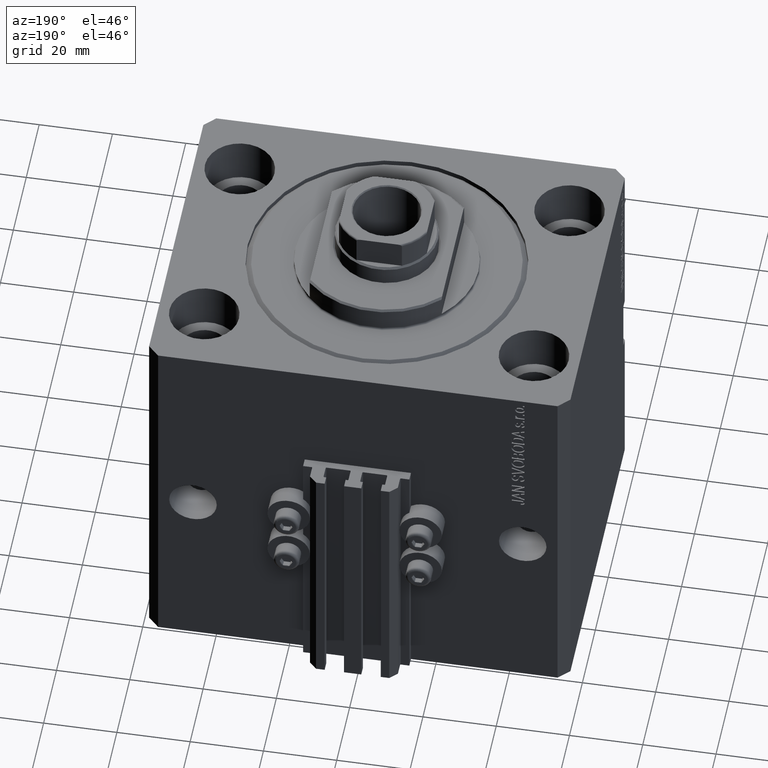
[diagram: clean part render]
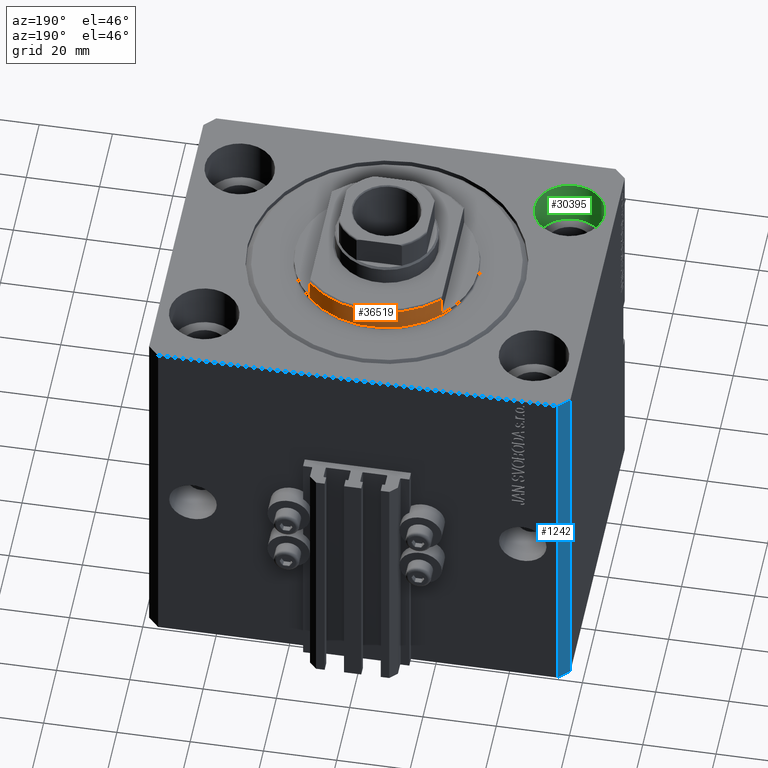
[diagram: same view with three faces highlighted in distinct colors, each labeled with its STEP entity id]
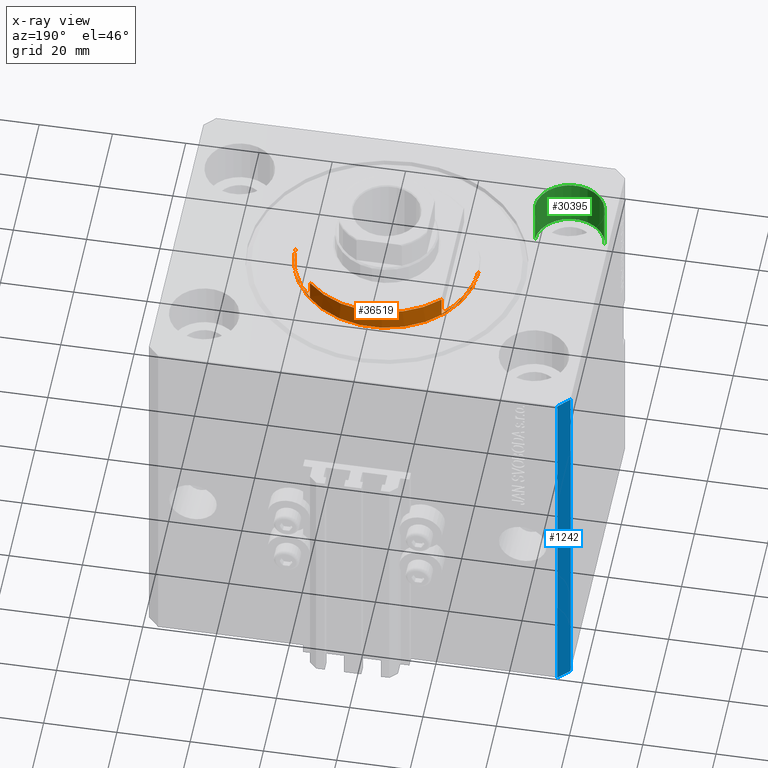
[diagram: x-ray of the same camera — body ghosted, the three highlighted faces saturated]
A machine part, auxiliary view with three faces highlighted in distinct colors.
The next image is the same camera in x-ray (body ghosted, the three faces saturated) — at least one of them is partly hidden behind the body in this view.
Their STEP definitions:

[orange] entity #36519 — the highlighted cylindrical surface (partial cylindrical patch) has radius 25 mm, axis along (0, 0, -1).
#260 = VECTOR ( 'NONE', #36054, 1000.000000000000000 ) ;
#305 = CARTESIAN_POINT ( 'NONE',  ( 0.000000000000000000, 0.000000000000000000, -6.499999999999958256 ) ) ;
#2420 = CIRCLE ( 'NONE', #33049, 25.00000000000000000 ) ;
#3402 = VERTEX_POINT ( 'NONE', #48473 ) ;
#3688 = CARTESIAN_POINT ( 'NONE',  ( -25.00000000000000000, 3.061616997868383043E-15, -7.000000000000000000 ) ) ;
#4120 = AXIS2_PLACEMENT_3D ( 'NONE', #43318, #39877, #9611 ) ;
#4731 = ORIENTED_EDGE ( 'NONE', *, *, #18673, .T. ) ;
#4768 = VECTOR ( 'NONE', #32281, 1000.000000000000000 ) ;
#5048 = DIRECTION ( 'NONE',  ( 1.000000000000000000, 0.000000000000000000, 0.000000000000000000 ) ) ;
#7328 = ORIENTED_EDGE ( 'NONE', *, *, #43600, .T. ) ;
#7659 = CARTESIAN_POINT ( 'NONE',  ( -25.00000000000000000, 3.061616997868383043E-15, -1.000000000000000000 ) ) ;
#7701 = VERTEX_POINT ( 'NONE', #31613 ) ;
#7801 = VERTEX_POINT ( 'NONE', #17338 ) ;
#8742 = CARTESIAN_POINT ( 'NONE',  ( 0.000000000000000000, 0.000000000000000000, -7.000000000000000000 ) ) ;
#9611 = DIRECTION ( 'NONE',  ( -1.000000000000000000, 0.000000000000000000, 0.000000000000000000 ) ) ;
#10308 = VECTOR ( 'NONE', #19401, 1000.000000000000000 ) ;
#10647 = EDGE_CURVE ( 'NONE', #34896, #3402, #41343, .T. ) ;
#11898 = ORIENTED_EDGE ( 'NONE', *, *, #34471, .F. ) ;
#12239 = LINE ( 'NONE', #46457, #10308 ) ;
#12630 = ORIENTED_EDGE ( 'NONE', *, *, #22662, .T. ) ;
#13529 = CARTESIAN_POINT ( 'NONE',  ( -18.00000000000000000, 17.34935157289747920, -1.000000000000000000 ) ) ;
#15589 = CARTESIAN_POINT ( 'NONE',  ( 18.00000000000000000, 17.34935157289747920, -1.000000000000000000 ) ) ;
#17184 = CARTESIAN_POINT ( 'NONE',  ( 0.000000000000000000, 0.000000000000000000, -0.4999999999999995559 ) ) ;
#17273 = CARTESIAN_POINT ( 'NONE',  ( 25.00000000000000000, 0.000000000000000000, -7.000000000000000000 ) ) ;
#17338 = CARTESIAN_POINT ( 'NONE',  ( 25.00000000000000000, 0.000000000000000000, -1.000000000000000000 ) ) ;
#18279 = DIRECTION ( 'NONE',  ( -1.000000000000000000, 0.000000000000000000, 0.000000000000000000 ) ) ;
#18673 = EDGE_CURVE ( 'NONE', #3402, #22641, #24182, .T. ) ;
#18759 = DIRECTION ( 'NONE',  ( 0.000000000000000000, 0.000000000000000000, 1.000000000000000000 ) ) ;
#19401 = DIRECTION ( 'NONE',  ( -0.000000000000000000, -0.000000000000000000, 1.000000000000000000 ) ) ;
#21291 = CARTESIAN_POINT ( 'NONE',  ( 18.00000000000000000, 17.34935157289748986, -6.499999999999965361 ) ) ;
#22641 = VERTEX_POINT ( 'NONE', #30066 ) ;
#22662 = EDGE_CURVE ( 'NONE', #42837, #7701, #22751, .T. ) ;
#22751 = CIRCLE ( 'NONE', #30600, 25.00000000000000000 ) ;
#22899 = DIRECTION ( 'NONE',  ( -0.000000000000000000, -0.000000000000000000, 1.000000000000000000 ) ) ;
#24182 = CIRCLE ( 'NONE', #26563, 25.00000000000000000 ) ;
#24993 = LINE ( 'NONE', #39999, #260 ) ;
#25158 = EDGE_CURVE ( 'NONE', #7801, #22641, #26292, .T. ) ;
#25346 = CIRCLE ( 'NONE', #4120, 25.00000000000000000 ) ;
#25552 = VERTEX_POINT ( 'NONE', #15589 ) ;
#26074 = EDGE_CURVE ( 'NONE', #34896, #37084, #2420, .T. ) ;
#26292 = LINE ( 'NONE', #17273, #4768 ) ;
#26563 = AXIS2_PLACEMENT_3D ( 'NONE', #17184, #32195, #28734 ) ;
#28222 = DIRECTION ( 'NONE',  ( -1.000000000000000000, 0.000000000000000000, 0.000000000000000000 ) ) ;
#28734 = DIRECTION ( 'NONE',  ( 1.000000000000000000, 0.000000000000000000, 0.000000000000000000 ) ) ;
#30066 = CARTESIAN_POINT ( 'NONE',  ( 25.00000000000000000, 0.000000000000000000, -0.4999999999999995559 ) ) ;
#30600 = AXIS2_PLACEMENT_3D ( 'NONE', #305, #18759, #18279 ) ;
#30896 = DIRECTION ( 'NONE',  ( -0.000000000000000000, -0.000000000000000000, 1.000000000000000000 ) ) ;
#31613 = CARTESIAN_POINT ( 'NONE',  ( -18.00000000000000000, 17.34935157289748986, -6.499999999999965361 ) ) ;
#32195 = DIRECTION ( 'NONE',  ( -0.000000000000000000, -0.000000000000000000, -1.000000000000000000 ) ) ;
#32281 = DIRECTION ( 'NONE',  ( -0.000000000000000000, -0.000000000000000000, 1.000000000000000000 ) ) ;
#33049 = AXIS2_PLACEMENT_3D ( 'NONE', #35124, #38578, #28222 ) ;
#34252 = VECTOR ( 'NONE', #22899, 1000.000000000000000 ) ;
#34471 = EDGE_CURVE ( 'NONE', #42837, #25552, #12239, .T. ) ;
#34896 = VERTEX_POINT ( 'NONE', #7659 ) ;
#35124 = CARTESIAN_POINT ( 'NONE',  ( 0.000000000000000000, 0.000000000000000000, -1.000000000000000000 ) ) ;
#36054 = DIRECTION ( 'NONE',  ( -0.000000000000000000, -0.000000000000000000, 1.000000000000000000 ) ) ;
#36519 = ADVANCED_FACE ( 'NONE', ( #46169 ), #42450, .T. ) ;
#37084 = VERTEX_POINT ( 'NONE', #13529 ) ;
#37945 = ORIENTED_EDGE ( 'NONE', *, *, #10647, .T. ) ;
#38102 = EDGE_CURVE ( 'NONE', #25552, #7801, #25346, .T. ) ;
#38578 = DIRECTION ( 'NONE',  ( 0.000000000000000000, 0.000000000000000000, -1.000000000000000000 ) ) ;
#39785 = ORIENTED_EDGE ( 'NONE', *, *, #38102, .F. ) ;
#39877 = DIRECTION ( 'NONE',  ( 0.000000000000000000, 0.000000000000000000, -1.000000000000000000 ) ) ;
#39999 = CARTESIAN_POINT ( 'NONE',  ( -18.00000000000000000, 17.34935157289747920, -7.000000000000000000 ) ) ;
#41343 = LINE ( 'NONE', #3688, #34252 ) ;
#42450 = CYLINDRICAL_SURFACE ( 'NONE', #47357, 25.00000000000000000 ) ;
#42671 = EDGE_LOOP ( 'NONE', ( #48202, #37945, #4731, #45666, #39785, #11898, #12630, #7328 ) ) ;
#42837 = VERTEX_POINT ( 'NONE', #21291 ) ;
#43318 = CARTESIAN_POINT ( 'NONE',  ( 0.000000000000000000, 0.000000000000000000, -1.000000000000000000 ) ) ;
#43600 = EDGE_CURVE ( 'NONE', #7701, #37084, #24993, .T. ) ;
#45666 = ORIENTED_EDGE ( 'NONE', *, *, #25158, .F. ) ;
#46169 = FACE_OUTER_BOUND ( 'NONE', #42671, .T. ) ;
#46457 = CARTESIAN_POINT ( 'NONE',  ( 18.00000000000000000, 17.34935157289747920, -7.000000000000000000 ) ) ;
#47357 = AXIS2_PLACEMENT_3D ( 'NONE', #8742, #30896, #5048 ) ;
#48202 = ORIENTED_EDGE ( 'NONE', *, *, #26074, .F. ) ;
#48473 = CARTESIAN_POINT ( 'NONE',  ( -25.00000000000000000, 3.061616997868383043E-15, -0.4999999999999995559 ) ) ;

[blue] entity #1242 — the highlighted planar face has unit normal (-0.7071, 0.7071, 0).
#1242 = ADVANCED_FACE ( 'NONE', ( #39195 ), #5482, .T. ) ;
#1616 = DIRECTION ( 'NONE',  ( -0.7071067811865483499, -0.7071067811865466846, 0.000000000000000000 ) ) ;
#1791 = DIRECTION ( 'NONE',  ( -0.7071067811865483499, -0.7071067811865465735, 0.000000000000000000 ) ) ;
#3797 = CARTESIAN_POINT ( 'NONE',  ( -54.49999999999999289, 45.00000000000000000, -105.0000000000000000 ) ) ;
#5159 = CARTESIAN_POINT ( 'NONE',  ( -57.49999999999998579, 42.00000000000000711, -105.0000000000000000 ) ) ;
#5482 = PLANE ( 'NONE',  #48231 ) ;
#5802 = LINE ( 'NONE', #28184, #21617 ) ;
#8675 = ORIENTED_EDGE ( 'NONE', *, *, #47808, .T. ) ;
#8820 = VECTOR ( 'NONE', #27674, 1000.000000000000000 ) ;
#9040 = LINE ( 'NONE', #42259, #24112 ) ;
#9305 = VERTEX_POINT ( 'NONE', #3797 ) ;
#10307 = VERTEX_POINT ( 'NONE', #38195 ) ;
#10633 = CARTESIAN_POINT ( 'NONE',  ( -57.49999999999998579, 42.00000000000000711, 0.000000000000000000 ) ) ;
#12411 = EDGE_CURVE ( 'NONE', #9305, #10307, #9040, .T. ) ;
#12471 = LINE ( 'NONE', #34860, #24926 ) ;
#13796 = EDGE_CURVE ( 'NONE', #14774, #19284, #12471, .T. ) ;
#14774 = VERTEX_POINT ( 'NONE', #5159 ) ;
#19103 = CARTESIAN_POINT ( 'NONE',  ( -54.49999999999999289, 45.00000000000000000, 0.000000000000000000 ) ) ;
#19284 = VERTEX_POINT ( 'NONE', #10633 ) ;
#19395 = DIRECTION ( 'NONE',  ( 0.000000000000000000, 0.000000000000000000, 1.000000000000000000 ) ) ;
#20696 = ORIENTED_EDGE ( 'NONE', *, *, #12411, .F. ) ;
#21617 = VECTOR ( 'NONE', #1616, 1000.000000000000000 ) ;
#24112 = VECTOR ( 'NONE', #31916, 1000.000000000000000 ) ;
#24926 = VECTOR ( 'NONE', #19395, 1000.000000000000000 ) ;
#27624 = CARTESIAN_POINT ( 'NONE',  ( -54.49999999999999289, 45.00000000000000000, -105.0000000000000000 ) ) ;
#27674 = DIRECTION ( 'NONE',  ( -0.7071067811865483499, -0.7071067811865466846, 0.000000000000000000 ) ) ;
#28184 = CARTESIAN_POINT ( 'NONE',  ( -54.49999999999999289, 45.00000000000000000, -105.0000000000000000 ) ) ;
#31379 = LINE ( 'NONE', #19103, #8820 ) ;
#31916 = DIRECTION ( 'NONE',  ( 0.000000000000000000, 0.000000000000000000, 1.000000000000000000 ) ) ;
#33109 = ORIENTED_EDGE ( 'NONE', *, *, #36551, .F. ) ;
#34860 = CARTESIAN_POINT ( 'NONE',  ( -57.49999999999998579, 42.00000000000000711, -105.0000000000000000 ) ) ;
#35373 = ORIENTED_EDGE ( 'NONE', *, *, #13796, .T. ) ;
#35495 = DIRECTION ( 'NONE',  ( -0.7071067811865466846, 0.7071067811865484609, 0.000000000000000000 ) ) ;
#36551 = EDGE_CURVE ( 'NONE', #10307, #19284, #31379, .T. ) ;
#38195 = CARTESIAN_POINT ( 'NONE',  ( -54.49999999999999289, 45.00000000000000000, 0.000000000000000000 ) ) ;
#39195 = FACE_OUTER_BOUND ( 'NONE', #41958, .T. ) ;
#41958 = EDGE_LOOP ( 'NONE', ( #33109, #20696, #8675, #35373 ) ) ;
#42259 = CARTESIAN_POINT ( 'NONE',  ( -54.49999999999999289, 45.00000000000000000, -105.0000000000000000 ) ) ;
#47808 = EDGE_CURVE ( 'NONE', #9305, #14774, #5802, .T. ) ;
#48231 = AXIS2_PLACEMENT_3D ( 'NONE', #27624, #35495, #1791 ) ;

[green] entity #30395 — the highlighted cylindrical surface (edge-blend (fillet) strip) has radius 9.5 mm, axis along (0, 0, 1).
#337 = AXIS2_PLACEMENT_3D ( 'NONE', #1099, #32092, #17574 ) ;
#1099 = CARTESIAN_POINT ( 'NONE',  ( -45.00000000000000000, -27.49999999999999645, -13.00000000000000000 ) ) ;
#1782 = CARTESIAN_POINT ( 'NONE',  ( -54.50000000000000000, -27.49999999999999645, 0.000000000000000000 ) ) ;
#6143 = DIRECTION ( 'NONE',  ( 1.000000000000000000, 0.000000000000000000, 0.000000000000000000 ) ) ;
#6454 = DIRECTION ( 'NONE',  ( -0.000000000000000000, -0.000000000000000000, 1.000000000000000000 ) ) ;
#6771 = EDGE_CURVE ( 'NONE', #45185, #11922, #42748, .T. ) ;
#8939 = VERTEX_POINT ( 'NONE', #45580 ) ;
#10089 = DIRECTION ( 'NONE',  ( -0.000000000000000000, -0.000000000000000000, 1.000000000000000000 ) ) ;
#10796 = DIRECTION ( 'NONE',  ( -0.000000000000000000, -0.000000000000000000, 1.000000000000000000 ) ) ;
#11922 = VERTEX_POINT ( 'NONE', #40392 ) ;
#12857 = CARTESIAN_POINT ( 'NONE',  ( -54.50000000000000000, -27.49999999999999645, -13.00000000000000000 ) ) ;
#13311 = ORIENTED_EDGE ( 'NONE', *, *, #26395, .T. ) ;
#13382 = ORIENTED_EDGE ( 'NONE', *, *, #6771, .F. ) ;
#15425 = EDGE_CURVE ( 'NONE', #45185, #15447, #35487, .T. ) ;
#15447 = VERTEX_POINT ( 'NONE', #1782 ) ;
#15585 = CYLINDRICAL_SURFACE ( 'NONE', #38445, 9.500000000000001776 ) ;
#17574 = DIRECTION ( 'NONE',  ( 1.000000000000000000, 0.000000000000000000, 0.000000000000000000 ) ) ;
#22044 = CARTESIAN_POINT ( 'NONE',  ( -54.50000000000000000, -27.49999999999999645, -13.00000000000000000 ) ) ;
#26395 = EDGE_CURVE ( 'NONE', #15447, #8939, #29944, .T. ) ;
#26574 = EDGE_LOOP ( 'NONE', ( #13382, #39227, #13311, #40505 ) ) ;
#29256 = LINE ( 'NONE', #33195, #33164 ) ;
#29944 = CIRCLE ( 'NONE', #38590, 9.500000000000001776 ) ;
#30395 = ADVANCED_FACE ( 'NONE', ( #34280 ), #15585, .F. ) ;
#30595 = CARTESIAN_POINT ( 'NONE',  ( -45.00000000000000000, -27.49999999999999645, -13.00000000000000000 ) ) ;
#31125 = VECTOR ( 'NONE', #6454, 1000.000000000000000 ) ;
#32092 = DIRECTION ( 'NONE',  ( 0.000000000000000000, 0.000000000000000000, 1.000000000000000000 ) ) ;
#33164 = VECTOR ( 'NONE', #10089, 1000.000000000000000 ) ;
#33195 = CARTESIAN_POINT ( 'NONE',  ( -35.50000000000000000, -27.49999999999999645, -13.00000000000000000 ) ) ;
#34280 = FACE_OUTER_BOUND ( 'NONE', #26574, .T. ) ;
#35487 = LINE ( 'NONE', #12857, #31125 ) ;
#36718 = DIRECTION ( 'NONE',  ( 0.000000000000000000, 0.000000000000000000, 1.000000000000000000 ) ) ;
#37279 = EDGE_CURVE ( 'NONE', #11922, #8939, #29256, .T. ) ;
#38445 = AXIS2_PLACEMENT_3D ( 'NONE', #30595, #10796, #6143 ) ;
#38590 = AXIS2_PLACEMENT_3D ( 'NONE', #40414, #36718, #48058 ) ;
#39227 = ORIENTED_EDGE ( 'NONE', *, *, #15425, .T. ) ;
#40392 = CARTESIAN_POINT ( 'NONE',  ( -35.50000000000000000, -27.49999999999999645, -13.00000000000000000 ) ) ;
#40414 = CARTESIAN_POINT ( 'NONE',  ( -45.00000000000000000, -27.49999999999999645, 0.000000000000000000 ) ) ;
#40505 = ORIENTED_EDGE ( 'NONE', *, *, #37279, .F. ) ;
#42748 = CIRCLE ( 'NONE', #337, 9.500000000000001776 ) ;
#45185 = VERTEX_POINT ( 'NONE', #22044 ) ;
#45580 = CARTESIAN_POINT ( 'NONE',  ( -35.50000000000000000, -27.49999999999999645, 0.000000000000000000 ) ) ;
#48058 = DIRECTION ( 'NONE',  ( 1.000000000000000000, 0.000000000000000000, 0.000000000000000000 ) ) ;